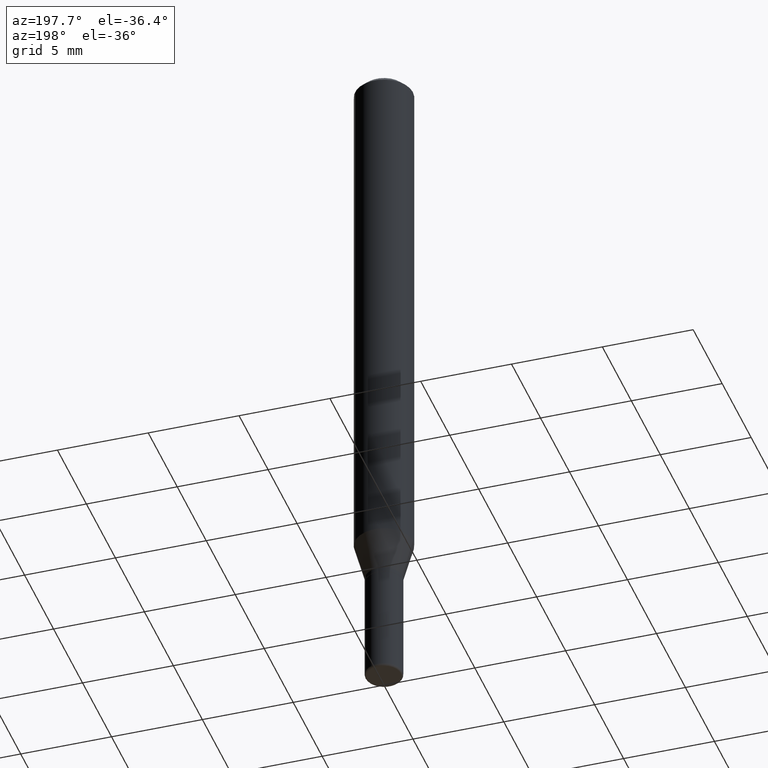
[diagram: clean part render]
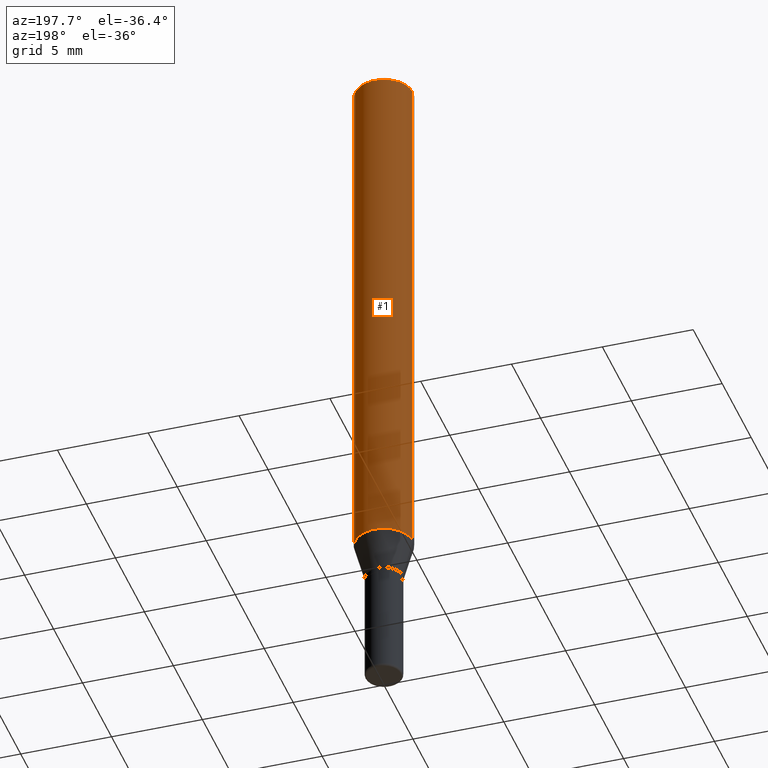
[diagram: same view with one face highlighted and labeled with its STEP entity id]
A machine part, auxiliary view. The second image highlights one B-rep face of the part: STEP entity #1.
In plain terms, the highlighted cylindrical surface (edge-blend (fillet) strip) has radius 1.5875 mm, axis along (-0, 0, 1).
Its self-contained STEP definition (entity closure, byte-faithful):
#1 = ADVANCED_FACE ( 'NONE', ( #173 ), #290, .T. ) ;
#17 = CARTESIAN_POINT ( 'NONE',  ( -0.06250000000000000000, -3.627078784323440528E-15, -1.166028856829699700 ) ) ;
#21 = DIRECTION ( 'NONE',  ( -2.445468806185136597E-29, 3.491481338843145583E-15, 1.000000000000000000 ) ) ;
#38 = VERTEX_POINT ( 'NONE', #83 ) ;
#44 = CARTESIAN_POINT ( 'NONE',  ( 0.000000000000000000, 0.000000000000000000, 0.000000000000000000 ) ) ;
#46 = ORIENTED_EDGE ( 'NONE', *, *, #165, .F. ) ;
#83 = CARTESIAN_POINT ( 'NONE',  ( 0.06250000000000000000, -4.507603161528894025E-15, -1.166028856829699700 ) ) ;
#95 = DIRECTION ( 'NONE',  ( 1.000000000000000000, -6.982962677686266711E-15, 0.000000000000000000 ) ) ;
#100 = CIRCLE ( 'NONE', #263, 0.06250000000000000000 ) ;
#111 = VECTOR ( 'NONE', #339, 39.37007874015748143 ) ;
#126 = DIRECTION ( 'NONE',  ( 1.000000000000000000, -6.982962677686266711E-15, 4.876176775795935793E-29 ) ) ;
#134 = CARTESIAN_POINT ( 'NONE',  ( -0.06250000000000000000, -1.617680897278011707E-15, -0.01499999999999970281 ) ) ;
#152 = DIRECTION ( 'NONE',  ( -2.445468806185136597E-29, 3.491481338843145583E-15, 1.000000000000000000 ) ) ;
#165 = EDGE_CURVE ( 'NONE', #38, #308, #216, .T. ) ;
#173 = FACE_OUTER_BOUND ( 'NONE', #458, .T. ) ;
#216 = LINE ( 'NONE', #255, #475 ) ;
#243 = EDGE_CURVE ( 'NONE', #308, #288, #332, .T. ) ;
#255 = CARTESIAN_POINT ( 'NONE',  ( 0.06250000000000000000, -4.364351673553916694E-16, 3.047610484872459871E-30 ) ) ;
#256 = AXIS2_PLACEMENT_3D ( 'NONE', #295, #21, #95 ) ;
#263 = AXIS2_PLACEMENT_3D ( 'NONE', #507, #152, #344 ) ;
#265 = EDGE_CURVE ( 'NONE', #508, #288, #370, .T. ) ;
#288 = VERTEX_POINT ( 'NONE', #134 ) ;
#290 = CYLINDRICAL_SURFACE ( 'NONE', #439, 0.06250000000000000000 ) ;
#295 = CARTESIAN_POINT ( 'NONE',  ( 3.668203209277632395E-31, -5.237222008264614861E-17, -0.01499999999999970281 ) ) ;
#308 = VERTEX_POINT ( 'NONE', #488 ) ;
#332 = CIRCLE ( 'NONE', #256, 0.06250000000000000000 ) ;
#339 = DIRECTION ( 'NONE',  ( -2.445468806185136877E-29, 3.491481338843145188E-15, 1.000000000000000000 ) ) ;
#342 = CARTESIAN_POINT ( 'NONE',  ( -0.06250000000000000000, 4.440892098500626162E-16, -3.074334431409316114E-30 ) ) ;
#344 = DIRECTION ( 'NONE',  ( 1.000000000000000000, -6.982962677686262766E-15, 0.000000000000000000 ) ) ;
#367 = DIRECTION ( 'NONE',  ( -2.445468806185136877E-29, 3.491481338843145188E-15, 1.000000000000000000 ) ) ;
#370 = LINE ( 'NONE', #342, #111 ) ;
#375 = ORIENTED_EDGE ( 'NONE', *, *, #430, .T. ) ;
#384 = ORIENTED_EDGE ( 'NONE', *, *, #243, .F. ) ;
#430 = EDGE_CURVE ( 'NONE', #38, #508, #100, .T. ) ;
#439 = AXIS2_PLACEMENT_3D ( 'NONE', #44, #484, #126 ) ;
#458 = EDGE_LOOP ( 'NONE', ( #375, #469, #384, #46 ) ) ;
#469 = ORIENTED_EDGE ( 'NONE', *, *, #265, .T. ) ;
#475 = VECTOR ( 'NONE', #367, 39.37007874015748143 ) ;
#484 = DIRECTION ( 'NONE',  ( -2.445468806185136597E-29, 3.491481338843145583E-15, 1.000000000000000000 ) ) ;
#488 = CARTESIAN_POINT ( 'NONE',  ( 0.06250000000000000000, -4.888073874380378612E-16, -0.01499999999999970281 ) ) ;
#507 = CARTESIAN_POINT ( 'NONE',  ( 2.851487196488745443E-29, -4.071167994173502356E-15, -1.166028856829699700 ) ) ;
#508 = VERTEX_POINT ( 'NONE', #17 ) ;